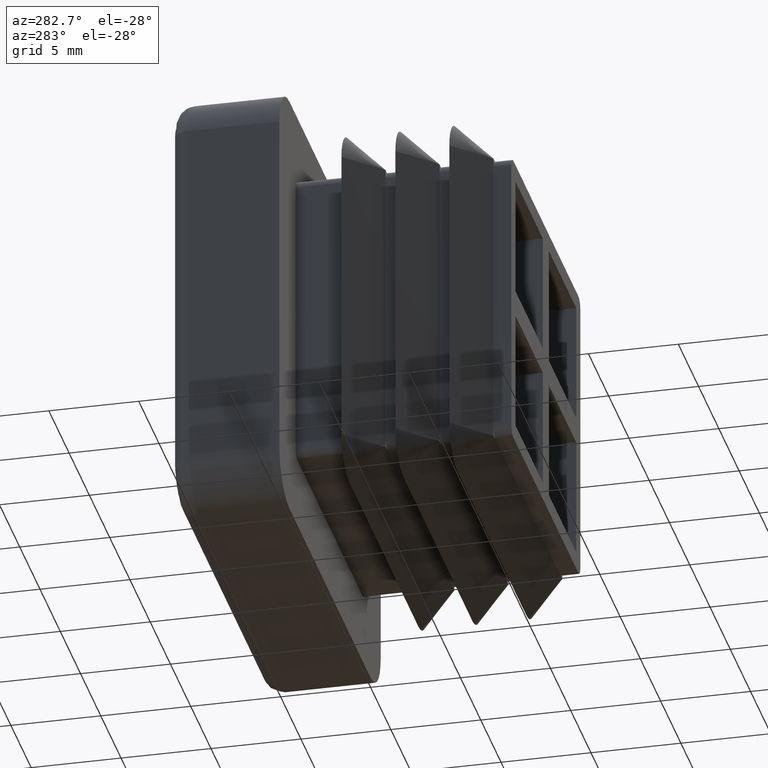
[diagram: clean part render]
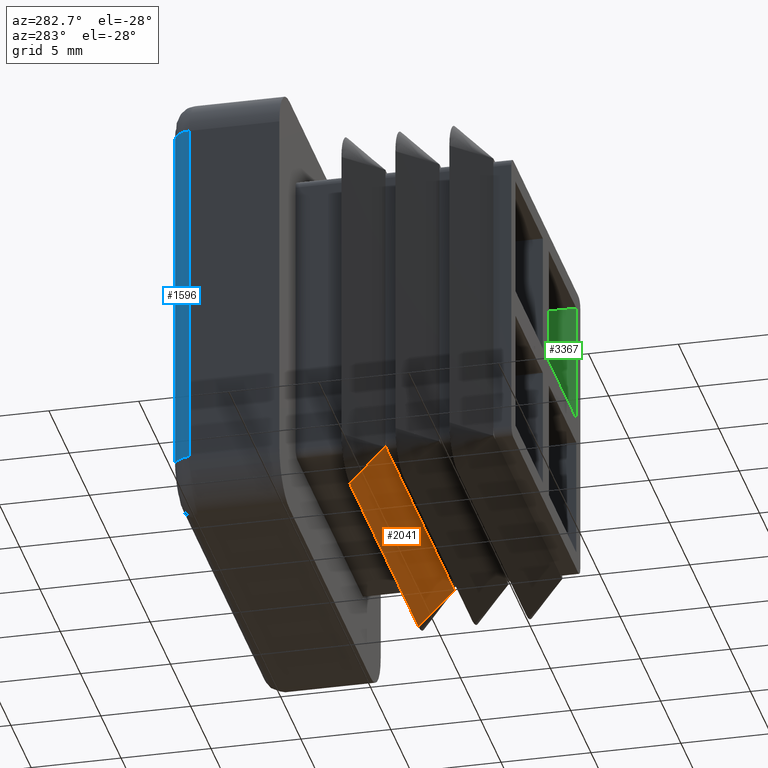
[diagram: same view with three faces highlighted in distinct colors, each labeled with its STEP entity id]
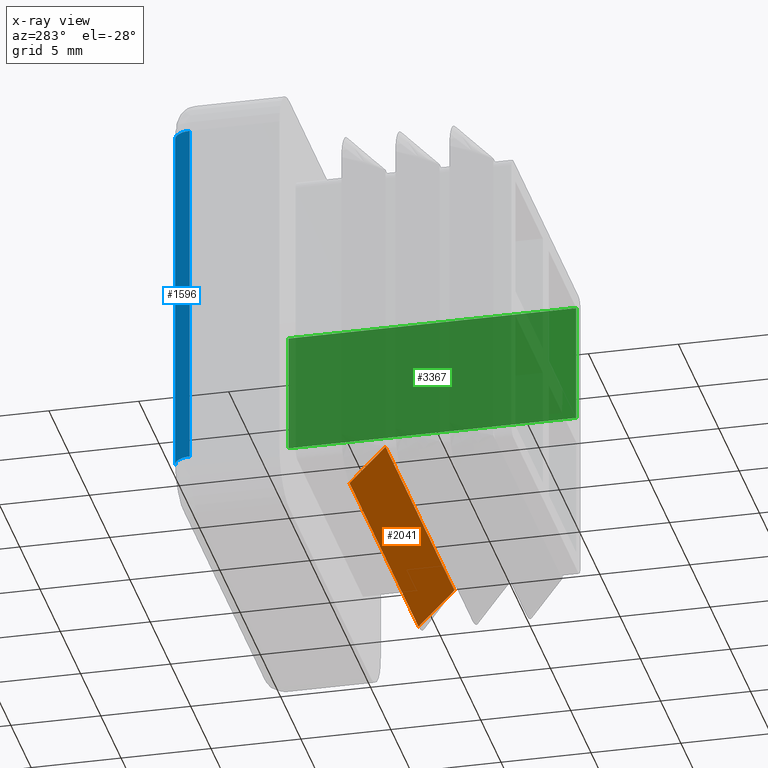
[diagram: x-ray of the same camera — body ghosted, the three highlighted faces saturated]
A machine part, auxiliary view with three faces highlighted in distinct colors.
The next image is the same camera in x-ray (body ghosted, the three faces saturated) — at least one of them is partly hidden behind the body in this view.
Their STEP definitions:

[orange] entity #2041 — the highlighted planar face has unit normal (0, 0.7071, 0.7071).
#793=CARTESIAN_POINT('',(7.999999999999997,-5.0,-8.500000000000004));
#794=VERTEX_POINT('',#793);
#824=CARTESIAN_POINT('',(-7.999999999999995,-5.0,-8.500000000000004));
#825=VERTEX_POINT('',#824);
#832=CARTESIAN_POINT('',(7.999999999999998,-5.0,-8.500000000000004));
#833=DIRECTION('',(-1.0,0.0,0.0));
#834=VECTOR('',#833,15.999999999999993);
#835=LINE('',#832,#834);
#836=EDGE_CURVE('',#794,#825,#835,.T.);
#935=CARTESIAN_POINT('',(8.499999999999998,-5.0,-8.499999999999989));
#936=VERTEX_POINT('',#935);
#937=CARTESIAN_POINT('',(7.999999999999998,-5.0,-8.499999999999989));
#938=DIRECTION('',(1.0,0.0,0.0));
#939=VECTOR('',#938,0.500000000000002);
#940=LINE('',#937,#939);
#941=EDGE_CURVE('',#794,#936,#940,.T.);
#1858=CARTESIAN_POINT('',(8.499999999999989,-3.0,-10.499999999999996));
#1859=VERTEX_POINT('',#1858);
#1867=CARTESIAN_POINT('',(-8.499999999999995,-3.0,-10.500000000000004));
#1868=VERTEX_POINT('',#1867);
#1869=CARTESIAN_POINT('',(8.499999999999988,-3.0,-10.499999999999996));
#1870=DIRECTION('',(-1.0,0.0,0.0));
#1871=VECTOR('',#1870,16.999999999999979);
#1872=LINE('',#1869,#1871);
#1873=EDGE_CURVE('',#1859,#1868,#1872,.T.);
#1908=CARTESIAN_POINT('',(-8.499999999999995,-4.999999999999999,-8.499999999999993));
#1909=VERTEX_POINT('',#1908);
#1916=CARTESIAN_POINT('',(-8.500000000000000,-5.0,-8.499999999999989));
#1917=DIRECTION('',(1.0,0.0,0.0));
#1918=VECTOR('',#1917,0.500000000000005);
#1919=LINE('',#1916,#1918);
#1920=EDGE_CURVE('',#1909,#825,#1919,.T.);
#1995=CARTESIAN_POINT('',(-8.499999999999995,-4.999999999999997,-8.499999999999993));
#1996=DIRECTION('',(0.0,0.707106781186546,-0.707106781186549));
#1997=VECTOR('',#1996,2.828427124746195);
#1998=LINE('',#1995,#1997);
#1999=EDGE_CURVE('',#1909,#1868,#1998,.T.);
#2023=CARTESIAN_POINT('',(-9.350000000000000,-2.899999999999996,-10.600000000000000));
#2024=DIRECTION('',(0.0,0.707106781186548,0.707106781186547));
#2025=DIRECTION('',(0.0,-0.707106781186547,0.707106781186548));
#2026=AXIS2_PLACEMENT_3D('',#2023,#2024,#2025);
#2027=PLANE('',#2026);
#2028=ORIENTED_EDGE('',*,*,#1999,.T.);
#2029=ORIENTED_EDGE('',*,*,#1873,.F.);
#2030=CARTESIAN_POINT('',(8.500000000000000,-5.0,-8.499999999999989));
#2031=DIRECTION('',(-5.024296E-015,0.707106781186547,-0.707106781186548));
#2032=VECTOR('',#2031,2.828427124746195);
#2033=LINE('',#2030,#2032);
#2034=EDGE_CURVE('',#936,#1859,#2033,.T.);
#2035=ORIENTED_EDGE('',*,*,#2034,.F.);
#2036=ORIENTED_EDGE('',*,*,#941,.F.);
#2037=ORIENTED_EDGE('',*,*,#836,.T.);
#2038=ORIENTED_EDGE('',*,*,#1920,.F.);
#2039=EDGE_LOOP('',(#2028,#2029,#2035,#2036,#2037,#2038));
#2040=FACE_OUTER_BOUND('',#2039,.T.);
#2041=ADVANCED_FACE('',(#2040),#2027,.F.);

[blue] entity #1596 — the highlighted cylindrical surface (edge-blend (fillet) strip) has radius 1 mm, axis along (0, 0, -1).
#1014=CARTESIAN_POINT('',(-12.499999999999996,5.0,9.999999999999982));
#1015=VERTEX_POINT('',#1014);
#1205=CARTESIAN_POINT('',(-12.499999999999996,5.0,-9.999999999999989));
#1206=VERTEX_POINT('',#1205);
#1239=CARTESIAN_POINT('',(-12.499999999999996,5.0,9.999999999999979));
#1240=DIRECTION('',(0.0,0.0,-1.0));
#1241=VECTOR('',#1240,19.999999999999964);
#1242=LINE('',#1239,#1241);
#1243=EDGE_CURVE('',#1015,#1206,#1242,.T.);
#1270=CARTESIAN_POINT('',(-11.499999999999996,6.0,-9.999999999999995));
#1271=VERTEX_POINT('',#1270);
#1279=CARTESIAN_POINT('',(-11.499999999999996,6.0,9.999999999999989));
#1280=VERTEX_POINT('',#1279);
#1281=CARTESIAN_POINT('',(-11.499999999999996,6.0,-9.999999999999996));
#1282=DIRECTION('',(0.0,0.0,1.0));
#1283=VECTOR('',#1282,19.999999999999986);
#1284=LINE('',#1281,#1283);
#1285=EDGE_CURVE('',#1271,#1280,#1284,.T.);
#1550=CARTESIAN_POINT('',(-11.500000000000000,5.0,9.999999999999989));
#1551=DIRECTION('',(0.0,0.0,-1.0));
#1552=DIRECTION('',(-1.0,0.0,0.0));
#1553=AXIS2_PLACEMENT_3D('',#1550,#1551,#1552);
#1554=CIRCLE('',#1553,1.000000000000001);
#1555=EDGE_CURVE('',#1015,#1280,#1554,.T.);
#1579=CARTESIAN_POINT('',(-11.499999999999998,5.0,10.000000009999990));
#1580=DIRECTION('',(0.0,0.0,-1.0));
#1581=DIRECTION('',(0.707106781186547,-0.707106781186548,0.0));
#1582=AXIS2_PLACEMENT_3D('',#1579,#1580,#1581);
#1583=CYLINDRICAL_SURFACE('',#1582,0.999999999999999);
#1584=ORIENTED_EDGE('',*,*,#1555,.T.);
#1585=ORIENTED_EDGE('',*,*,#1285,.F.);
#1586=CARTESIAN_POINT('',(-11.499999999999996,5.0,-9.999999999999989));
#1587=DIRECTION('',(0.0,0.0,-1.0));
#1588=DIRECTION('',(0.0,1.0,0.0));
#1589=AXIS2_PLACEMENT_3D('',#1586,#1587,#1588);
#1590=CIRCLE('',#1589,1.0);
#1591=EDGE_CURVE('',#1206,#1271,#1590,.T.);
#1592=ORIENTED_EDGE('',*,*,#1591,.F.);
#1593=ORIENTED_EDGE('',*,*,#1243,.F.);
#1594=EDGE_LOOP('',(#1584,#1585,#1592,#1593));
#1595=FACE_OUTER_BOUND('',#1594,.T.);
#1596=ADVANCED_FACE('',(#1595),#1583,.T.);

[green] entity #3367 — the highlighted planar face has unit normal (1, 0, 0).
#165=CARTESIAN_POINT('',(7.500000000000003,-12.0,0.749999999999999));
#166=VERTEX_POINT('',#165);
#189=CARTESIAN_POINT('',(7.500000000000003,-12.0,7.498999999999998));
#190=VERTEX_POINT('',#189);
#198=CARTESIAN_POINT('',(7.500000000000003,-12.0,0.749999999999999));
#199=DIRECTION('',(0.0,0.0,1.0));
#200=VECTOR('',#199,6.748999999999999);
#201=LINE('',#198,#200);
#202=EDGE_CURVE('',#166,#190,#201,.T.);
#3324=CARTESIAN_POINT('',(7.500000000000003,4.0,7.498999999999998));
#3325=VERTEX_POINT('',#3324);
#3326=CARTESIAN_POINT('',(7.500000000000003,4.0,7.498999999999998));
#3327=DIRECTION('',(0.0,-1.0,0.0));
#3328=VECTOR('',#3327,16.0);
#3329=LINE('',#3326,#3328);
#3330=EDGE_CURVE('',#3325,#190,#3329,.T.);
#3344=CARTESIAN_POINT('',(7.500000000000003,-12.800000000000001,7.836449999999998));
#3345=DIRECTION('',(1.0,0.0,0.0));
#3346=DIRECTION('',(0.0,0.0,-1.0));
#3347=AXIS2_PLACEMENT_3D('',#3344,#3345,#3346);
#3348=PLANE('',#3347);
#3349=CARTESIAN_POINT('',(7.500000000000003,4.0,0.749999999999999));
#3350=VERTEX_POINT('',#3349);
#3351=CARTESIAN_POINT('',(7.500000000000003,4.0,0.749999999999999));
#3352=DIRECTION('',(0.0,-1.0,0.0));
#3353=VECTOR('',#3352,16.0);
#3354=LINE('',#3351,#3353);
#3355=EDGE_CURVE('',#3350,#166,#3354,.T.);
#3356=ORIENTED_EDGE('',*,*,#3355,.T.);
#3357=ORIENTED_EDGE('',*,*,#202,.T.);
#3358=ORIENTED_EDGE('',*,*,#3330,.F.);
#3359=CARTESIAN_POINT('',(7.500000000000003,4.0,0.749999999999999));
#3360=DIRECTION('',(0.0,0.0,1.0));
#3361=VECTOR('',#3360,6.748999999999999);
#3362=LINE('',#3359,#3361);
#3363=EDGE_CURVE('',#3350,#3325,#3362,.T.);
#3364=ORIENTED_EDGE('',*,*,#3363,.F.);
#3365=EDGE_LOOP('',(#3356,#3357,#3358,#3364));
#3366=FACE_OUTER_BOUND('',#3365,.T.);
#3367=ADVANCED_FACE('',(#3366),#3348,.F.);